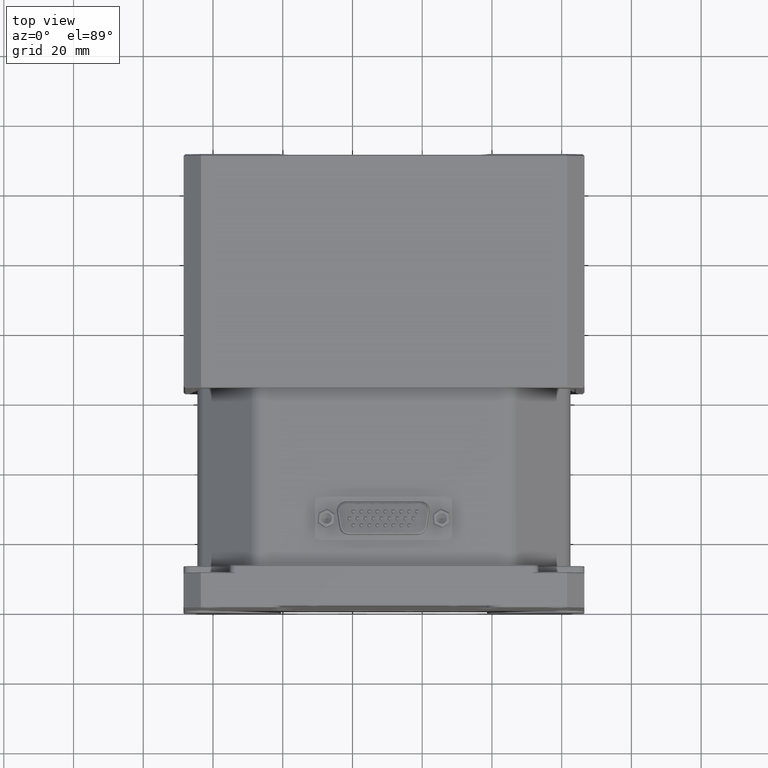
[diagram: clean part render]
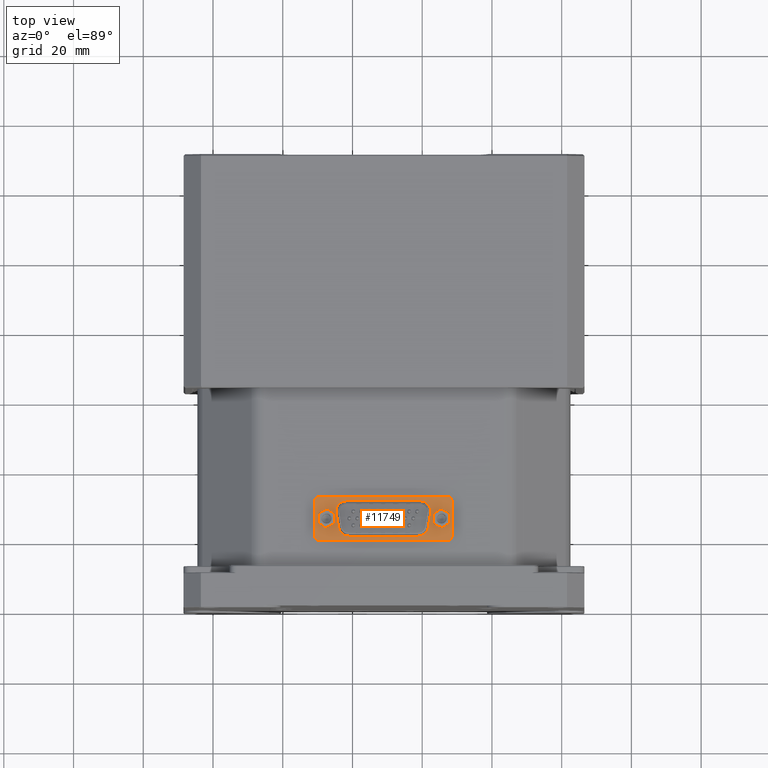
[diagram: same view with one face highlighted and labeled with its STEP entity id]
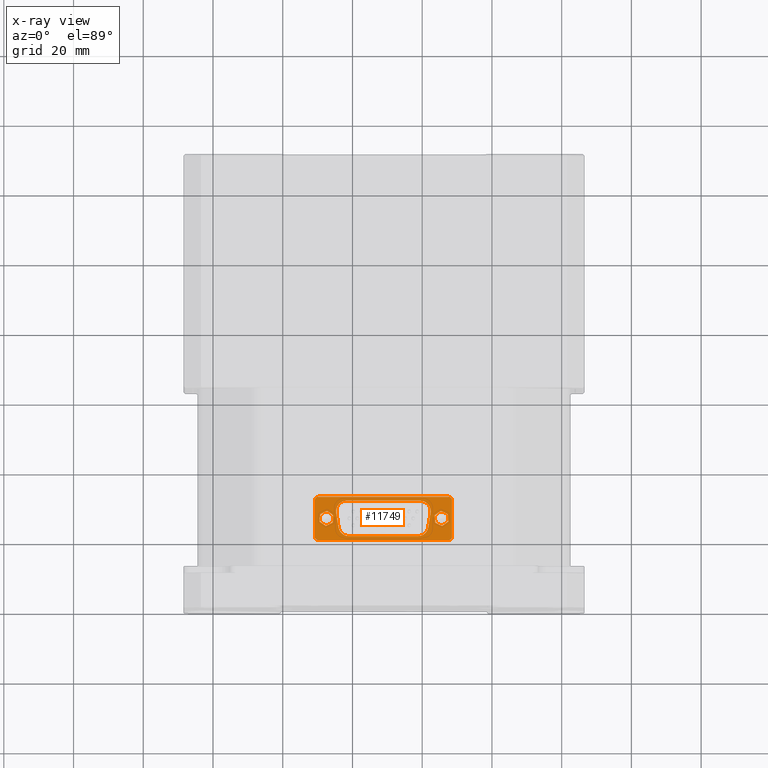
[diagram: x-ray of the same camera — body ghosted, the highlighted face saturated]
A machine part, top view. The second image highlights one B-rep face of the part: STEP entity #11749.
The next image is the same camera in x-ray: the body ghosted, the highlighted face saturated — about 0% of this face is hidden behind the body in this view.
In plain terms, the highlighted planar face has unit normal (0, 0, 1).
Its self-contained STEP definition (entity closure, byte-faithful):
#218 = CARTESIAN_POINT ( 'NONE',  ( -20.90847099414440180, 20.42943677352910115, 0.7999999999998880229 ) ) ;
#226 = FACE_OUTER_BOUND ( 'NONE', #37194, .T. ) ;
#267 = CARTESIAN_POINT ( 'NONE',  ( -47.30183417104730381, 27.62944717363299674, 0.7999999999998219646 ) ) ;
#513 = CARTESIAN_POINT ( 'NONE',  ( -49.79076186493019662, 19.30000000000000071, 0.7999999999999001243 ) ) ;
#781 = VERTEX_POINT ( 'NONE', #41377 ) ;
#1255 = CARTESIAN_POINT ( 'NONE',  ( -44.59532087940349498, 28.28341083439824999, 0.7999999999998129718 ) ) ;
#1508 = VERTEX_POINT ( 'NONE', #38861 ) ;
#1516 = CARTESIAN_POINT ( 'NONE',  ( -44.37853562852409794, 28.88822700559589762, 0.7999999999998070876 ) ) ;
#1871 = CARTESIAN_POINT ( 'NONE',  ( -42.38107698657990596, 20.72748995772925085, 0.7999999999998940181 ) ) ;
#1902 = VERTEX_POINT ( 'NONE', #7633 ) ;
#2014 = CARTESIAN_POINT ( 'NONE',  ( -44.64987169802535050, 27.11131759606919900, 0.7999999999998240741 ) ) ;
#2445 = CARTESIAN_POINT ( 'NONE',  ( -19.72496551446650059, 30.44034793306535036, 0.7999999999997799982 ) ) ;
#2693 = ORIENTED_EDGE ( 'NONE', *, *, #25323, .T. ) ;
#2751 = ORIENTED_EDGE ( 'NONE', *, *, #19799, .F. ) ;
#2917 = VECTOR ( 'NONE', #16849, 1000.000000000000000 ) ;
#3198 = CARTESIAN_POINT ( 'NONE',  ( -19.82776828177830097, 30.46935277396904951, 0.7999999999997799982 ) ) ;
#3297 = VECTOR ( 'NONE', #27282, 1000.000000000000000 ) ;
#3368 = VERTEX_POINT ( 'NONE', #32082 ) ;
#3448 = VERTEX_POINT ( 'NONE', #12922 ) ;
#3682 = ORIENTED_EDGE ( 'NONE', *, *, #25475, .F. ) ;
#3816 = FACE_BOUND ( 'NONE', #29680, .T. ) ;
#3963 = CARTESIAN_POINT ( 'NONE',  ( -11.47224741510111912, 30.70000000000000284, 0.7999999999997640110 ) ) ;
#4598 = DIRECTION ( 'NONE',  ( 0.000000000000000000, 1.000000000000000000, -2.710505431213759606E-16 ) ) ;
#5020 = VERTEX_POINT ( 'NONE', #40219 ) ;
#5095 = LINE ( 'NONE', #25020, #2917 ) ;
#5111 = DIRECTION ( 'NONE',  ( 1.494921845079933851E-16, -2.710505431213760099E-16, -1.000000000000000000 ) ) ;
#5165 = CARTESIAN_POINT ( 'NONE',  ( -49.79076186493019662, 20.29999999999999716, 0.7999999999999120037 ) ) ;
#5353 = CARTESIAN_POINT ( 'NONE',  ( -44.61976331597589507, 28.17656523206914798, 0.7999999999998150813 ) ) ;
#5449 = VERTEX_POINT ( 'NONE', #10239 ) ;
#5702 = LINE ( 'NONE', #33040, #9674 ) ;
#5761 = CARTESIAN_POINT ( 'NONE',  ( -14.30139915133099926, 23.37058753266245148, 0.7999999999998540501 ) ) ;
#5818 = EDGE_CURVE ( 'NONE', #38483, #3368, #21449, .T. ) ;
#5860 = LINE ( 'NONE', #16865, #19391 ) ;
#5861 = CARTESIAN_POINT ( 'NONE',  ( -42.74534304585954914, 30.36986479286349905, 0.7999999999997899902 ) ) ;
#5889 = EDGE_LOOP ( 'NONE', ( #41763, #10396, #12475, #17032, #16136, #44535, #43095, #35434 ) ) ;
#6363 = CARTESIAN_POINT ( 'NONE',  ( -12.47224741510111912, 31.69999999999999929, 0.7999999999997770006 ) ) ;
#6443 = VERTEX_POINT ( 'NONE', #14259 ) ;
#6527 = CARTESIAN_POINT ( 'NONE',  ( -18.04444699788314921, 29.17617281974079901, 0.7999999999997930988 ) ) ;
#6683 = CIRCLE ( 'NONE', #17424, 1.000000000000000888 ) ;
#6692 = CARTESIAN_POINT ( 'NONE',  ( -49.79076186493019662, 30.70000000000000284, 0.7999999999997899902 ) ) ;
#6716 = CARTESIAN_POINT ( 'NONE',  ( -43.93464799342750382, 22.57276583472959786, 0.7999999999998750333 ) ) ;
#6782 = CARTESIAN_POINT ( 'NONE',  ( -17.57146260285469808, 27.53552521698440003, 0.7999999999998100852 ) ) ;
#6792 = ORIENTED_EDGE ( 'NONE', *, *, #39655, .F. ) ;
#7155 = EDGE_CURVE ( 'NONE', #44608, #47411, #5702, .T. ) ;
#7204 = CARTESIAN_POINT ( 'NONE',  ( -47.64117510898390151, 23.37055282636704945, 0.7999999999998680389 ) ) ;
#7388 = CARTESIAN_POINT ( 'NONE',  ( -19.87997848261115053, 20.72863169514154791, 0.7999999999998850253 ) ) ;
#7464 = LINE ( 'NONE', #23317, #37205 ) ;
#7601 = ORIENTED_EDGE ( 'NONE', *, *, #49528, .T. ) ;
#7633 = CARTESIAN_POINT ( 'NONE',  ( -49.35459327026559606, 25.15830725207669971, 0.7999999999998530509 ) ) ;
#7701 = B_SPLINE_CURVE_WITH_KNOTS ( 'NONE', 3,
 ( #21626, #21880, #26203, #25957, #37461, #48978, #3198, #2445, #42051, #41804, #18047, #14967, #13964, #33628, #37204, #49233, #18296, #29796, #44885, #30284, #6527, #22132, #9868, #33873, #49474, #14459, #30040, #45639, #10624, #6782, #22377, #37961 ),
 .UNSPECIFIED., .F., .F.,
 ( 4, 1, 2, 2, 2, 2, 2, 2, 2, 2, 1, 2, 2, 2, 2, 2, 4 ),
 ( 0.000000000000000000, 0.06250000000000000000, 0.09375000000000000000, 0.1250000000000000000, 0.1875000000000000000, 0.2500000000000000000, 0.3125000000000000000, 0.3750000000000000000, 0.4375000000000000000, 0.5000000000000000000, 0.5625000000000000000, 0.5937500000000000000, 0.6250000000000000000, 0.7500000000000000000, 0.8125000000000000000, 0.8750000000000000000, 1.000000000000000000 ),
 .UNSPECIFIED. ) ;
#7789 = VECTOR ( 'NONE', #47006, 1000.000000000000000 ) ;
#7950 = LINE ( 'NONE', #35297, #31862 ) ;
#8394 = CARTESIAN_POINT ( 'NONE',  ( -18.46372050346549898, 22.24794865033419811, 0.7999999999998670397 ) ) ;
#8403 = LINE ( 'NONE', #12494, #7789 ) ;
#8767 = VERTEX_POINT ( 'NONE', #50108 ) ;
#8785 = VERTEX_POINT ( 'NONE', #46268 ) ;
#8832 = EDGE_CURVE ( 'NONE', #23248, #5449, #20933, .T. ) ;
#9152 = LINE ( 'NONE', #13241, #17474 ) ;
#9539 = DIRECTION ( 'NONE',  ( 0.9030026207697328111, 0.4296350391704498728, -5.024633286316839950E-15 ) ) ;
#9674 = VECTOR ( 'NONE', #9539, 1000.000000000000000 ) ;
#9725 = VECTOR ( 'NONE', #22360, 1000.000000000000000 ) ;
#9868 = CARTESIAN_POINT ( 'NONE',  ( -17.96099757066975044, 29.03371419791859864, 0.7999999999997939870 ) ) ;
#9949 = CARTESIAN_POINT ( 'NONE',  ( -43.89862483613020316, 29.59873323404039880, 0.7999999999997989830 ) ) ;
#10108 = LINE ( 'NONE', #5761, #9725 ) ;
#10239 = CARTESIAN_POINT ( 'NONE',  ( -47.64117510898390151, 23.37055282636704945, 0.7999999999998550493 ) ) ;
#10396 = ORIENTED_EDGE ( 'NONE', *, *, #38179, .T. ) ;
#10624 = CARTESIAN_POINT ( 'NONE',  ( -17.59409786076025028, 27.86312282943259788, 0.7999999999998070876 ) ) ;
#10828 = ORIENTED_EDGE ( 'NONE', *, *, #36006, .T. ) ;
#10839 = ORIENTED_EDGE ( 'NONE', *, *, #8832, .T. ) ;
#11008 = ORIENTED_EDGE ( 'NONE', *, *, #25053, .F. ) ;
#11058 = ORIENTED_EDGE ( 'NONE', *, *, #38678, .F. ) ;
#11180 = ORIENTED_EDGE ( 'NONE', *, *, #33976, .F. ) ;
#11235 = EDGE_CURVE ( 'NONE', #5449, #45454, #34804, .T. ) ;
#11393 = DIRECTION ( 'NONE',  ( -0.07942645210733381700, -0.9968407288557392665, 2.583586663816415235E-16 ) ) ;
#11746 = CARTESIAN_POINT ( 'NONE',  ( -18.34320700975345275, 22.57819203661225060, 0.7999999999998640421 ) ) ;
#11749 = ADVANCED_FACE ( 'NONE', ( #226, #39315, #30901, #3816 ), #47253, .T. ) ;
#11827 = CARTESIAN_POINT ( 'NONE',  ( -14.64161012870024159, 27.62941246733760181, 0.7999999999998079758 ) ) ;
#12142 = DIRECTION ( 'NONE',  ( -0.07942645210733381700, -0.9968407288557392665, 2.583586663816415235E-16 ) ) ;
#12232 = CARTESIAN_POINT ( 'NONE',  ( -19.57188996351065313, 20.90226359377989951, 0.7999999999998820277 ) ) ;
#12283 = CIRCLE ( 'NONE', #40847, 1.600000000000000755 ) ;
#12475 = ORIENTED_EDGE ( 'NONE', *, *, #37885, .T. ) ;
#12494 = CARTESIAN_POINT ( 'NONE',  ( -50.79076186493020373, 31.89475440776159942, 0.7999999999999060085 ) ) ;
#12922 = CARTESIAN_POINT ( 'NONE',  ( -18.26786506457844794, 22.92106170760460060, 0.7999999999998600453 ) ) ;
#13012 = DIRECTION ( 'NONE',  ( -0.9030026207697320340, -0.4296350391704515381, 5.024633286316831272E-15 ) ) ;
#13031 = DIRECTION ( 'NONE',  ( -0.07963009433733173048, 0.9968244820808864759, -1.065831303158124770E-14 ) ) ;
#13131 = CARTESIAN_POINT ( 'NONE',  ( -41.69900955668990150, 20.50306946978364664, 0.7999999999998960165 ) ) ;
#13241 = CARTESIAN_POINT ( 'NONE',  ( -45.54251405714839507, 26.41778465041795343, 0.7999999999998340661 ) ) ;
#13390 = CARTESIAN_POINT ( 'NONE',  ( -42.68613543159064250, 20.89967055248134642, 0.7999999999998920197 ) ) ;
#13458 = CARTESIAN_POINT ( 'NONE',  ( -41.00242246900545240, 20.43450157523579946, 0.7999999999998960165 ) ) ;
#13537 = CARTESIAN_POINT ( 'NONE',  ( -42.54169111035079709, 30.43917708894460361, 0.7999999999997899902 ) ) ;
#13664 = CIRCLE ( 'NONE', #47921, 1.000000000000000888 ) ;
#13789 = CARTESIAN_POINT ( 'NONE',  ( -41.90604931398424782, 30.56549842367344638, 0.7999999999997881028 ) ) ;
#13964 = CARTESIAN_POINT ( 'NONE',  ( -18.94422123348685005, 30.08178854321664986, 0.7999999999997831068 ) ) ;
#14259 = CARTESIAN_POINT ( 'NONE',  ( -16.40068267620760167, 26.41739055914474932, 0.7999999999998260725 ) ) ;
#14459 = CARTESIAN_POINT ( 'NONE',  ( -17.66809695507174993, 28.28570833184490141, 0.7999999999998020916 ) ) ;
#14744 = CARTESIAN_POINT ( 'NONE',  ( -12.54232660382366049, 24.58260944085529687, 0.7999999999998400613 ) ) ;
#14967 = CARTESIAN_POINT ( 'NONE',  ( -19.12875131629985148, 30.19096811781020051, 0.7999999999997819966 ) ) ;
#15244 = CARTESIAN_POINT ( 'NONE',  ( -45.71218452611670102, 24.28833747678494959, 0.7999999999998500533 ) ) ;
#15323 = CARTESIAN_POINT ( 'NONE',  ( -18.29800744574314919, 22.74752249132270165, 0.7999999999998620437 ) ) ;
#16126 = EDGE_CURVE ( 'NONE', #34641, #23248, #9152, .T. ) ;
#16136 = ORIENTED_EDGE ( 'NONE', *, *, #49999, .T. ) ;
#16164 = DIRECTION ( 'NONE',  ( 0.9030903717649765294, -0.4294505564385688312, 4.212571341053528759E-15 ) ) ;
#16575 = CARTESIAN_POINT ( 'NONE',  ( -11.47224741510111912, 31.89475440776159942, 0.7999999999997630118 ) ) ;
#16849 = DIRECTION ( 'NONE',  ( 1.000000000000000000, -4.486911405889655177E-30, -4.170576607243160041E-16 ) ) ;
#16865 = CARTESIAN_POINT ( 'NONE',  ( -16.23057718752295031, 24.28797809180720080, 0.7999999999998449463 ) ) ;
#16866 = CARTESIAN_POINT ( 'NONE',  ( -44.27722605307620540, 29.08116948847899863, 0.7999999999998049782 ) ) ;
#16902 = VECTOR ( 'NONE', #12142, 1000.000000000000000 ) ;
#17032 = ORIENTED_EDGE ( 'NONE', *, *, #18289, .T. ) ;
#17122 = CARTESIAN_POINT ( 'NONE',  ( -44.42286800047745032, 28.79179969915159987, 0.7999999999998079758 ) ) ;
#17261 = AXIS2_PLACEMENT_3D ( 'NONE', #47501, #19408, #34996 ) ;
#17378 = CARTESIAN_POINT ( 'NONE',  ( -44.64987169802535050, 27.11131759606919900, 0.7999999999998240741 ) ) ;
#17424 = AXIS2_PLACEMENT_3D ( 'NONE', #19992, #31737, #46847 ) ;
#17474 = VECTOR ( 'NONE', #37005, 1000.000000000000227 ) ;
#17612 = EDGE_CURVE ( 'NONE', #47411, #34641, #23793, .T. ) ;
#17625 = CARTESIAN_POINT ( 'NONE',  ( -44.22184001600889758, 29.17388692834630248, 0.7999999999998039790 ) ) ;
#17985 = CARTESIAN_POINT ( 'NONE',  ( -43.09085174618465430, 21.23487067851169741, 0.7999999999998890221 ) ) ;
#18047 = CARTESIAN_POINT ( 'NONE',  ( -19.22388563353450053, 30.24074191712104920, 0.7999999999997819966 ) ) ;
#18289 = EDGE_CURVE ( 'NONE', #41155, #3448, #42022, .T. ) ;
#18296 = CARTESIAN_POINT ( 'NONE',  ( -18.44051572286665319, 29.67792395124904914, 0.7999999999997881028 ) ) ;
#18936 = CARTESIAN_POINT ( 'NONE',  ( -49.23082475391460378, 26.71166252321505041, 0.7999999999998390621 ) ) ;
#19097 = CARTESIAN_POINT ( 'NONE',  ( -17.61313758200589774, 27.11131759606919900, 0.7999999999998139710 ) ) ;
#19391 = VECTOR ( 'NONE', #13031, 1000.000000000000114 ) ;
#19408 = DIRECTION ( 'NONE',  ( 4.170576607243160041E-16, 1.075849175890236147E-14, 1.000000000000000000 ) ) ;
#19697 = DIRECTION ( 'NONE',  ( 0.8235761686623986888, -0.5672056896852888386, 5.785941360001238564E-15 ) ) ;
#19799 = EDGE_CURVE ( 'NONE', #8785, #45197, #30360, .T. ) ;
#19992 = CARTESIAN_POINT ( 'NONE',  ( -12.47224741510111912, 30.70000000000000284, 0.7999999999997640110 ) ) ;
#20705 = CARTESIAN_POINT ( 'NONE',  ( -42.43922750056044890, 30.46824860090740117, 0.7999999999997891020 ) ) ;
#20933 = LINE ( 'NONE', #48031, #50500 ) ;
#21206 = CARTESIAN_POINT ( 'NONE',  ( -43.32611080553650140, 30.08386626116460150, 0.7999999999997939870 ) ) ;
#21449 = B_SPLINE_CURVE_WITH_KNOTS ( 'NONE', 3,
 ( #48149, #29225, #40727, #13131, #24889, #1871, #13390, #17985, #28721, #40471, #28974, #50425, #6716, #30729 ),
 .UNSPECIFIED., .F., .F.,
 ( 4, 2, 2, 2, 2, 2, 4 ),
 ( 0.000000000000000000, 0.1250000000000000000, 0.2500000000000000000, 0.5000000000000000000, 0.6250000000000000000, 0.7500000000000000000, 1.000000000000000000 ),
 .UNSPECIFIED. ) ;
#21462 = CARTESIAN_POINT ( 'NONE',  ( -44.68244262005089240, 27.64335126590750136, 0.7999999999998200773 ) ) ;
#21501 = CARTESIAN_POINT ( 'NONE',  ( -20.56951368650354794, 30.56549842367339664, 0.7999999999997791100 ) ) ;
#21584 = VERTEX_POINT ( 'NONE', #48861 ) ;
#21626 = CARTESIAN_POINT ( 'NONE',  ( -20.56951368650354794, 30.56549842367339664, 0.7999999999997791100 ) ) ;
#21880 = CARTESIAN_POINT ( 'NONE',  ( -20.46413109122650198, 30.56549842367339664, 0.7999999999997791100 ) ) ;
#22048 = DIRECTION ( 'NONE',  ( -0.8235761686623986888, 0.5672056896852888386, -5.785941360001238564E-15 ) ) ;
#22132 = CARTESIAN_POINT ( 'NONE',  ( -17.98869838297770229, 29.08306677325304790, 0.7999999999997939870 ) ) ;
#22360 = DIRECTION ( 'NONE',  ( -0.9030903717649765294, 0.4294505564385688312, -4.212571341053513771E-15 ) ) ;
#22377 = CARTESIAN_POINT ( 'NONE',  ( -17.58032420525940154, 27.32132320724640095, 0.7999999999998129718 ) ) ;
#22551 = EDGE_CURVE ( 'NONE', #34561, #48495, #28677, .T. ) ;
#22851 = VECTOR ( 'NONE', #19697, 1000.000000000000114 ) ;
#23248 = VERTEX_POINT ( 'NONE', #15244 ) ;
#23305 = DIRECTION ( 'NONE',  ( -9.542908625646799028E-17, -3.252606517456509851E-16, -1.000000000000000000 ) ) ;
#23317 = CARTESIAN_POINT ( 'NONE',  ( -12.71243209250830120, 26.71202190819284894, 0.7999999999998170797 ) ) ;
#23497 = CARTESIAN_POINT ( 'NONE',  ( -20.56192620520420178, 20.48724983760674689, 0.7999999999998870237 ) ) ;
#23579 = DIRECTION ( 'NONE',  ( -1.000000000000000000, 4.212125440106174865E-16, 0.000000000000000000 ) ) ;
#23793 = LINE ( 'NONE', #267, #22851 ) ;
#23886 = VECTOR ( 'NONE', #49995, 1000.000000000000000 ) ;
#24136 = CARTESIAN_POINT ( 'NONE',  ( -49.20789631216209870, 26.99942565478709966, 0.7999999999998449463 ) ) ;
#24540 = CARTESIAN_POINT ( 'NONE',  ( -44.66614033250454696, 27.21543685673615087, 0.7999999999998250733 ) ) ;
#24573 = LINE ( 'NONE', #42994, #42943 ) ;
#24748 = DIRECTION ( 'NONE',  ( -4.212125440106209871E-16, -1.000000000000000000, 0.000000000000000000 ) ) ;
#24795 = CARTESIAN_POINT ( 'NONE',  ( -43.13972723651684760, 30.19407410103849898, 0.7999999999997920996 ) ) ;
#24889 = CARTESIAN_POINT ( 'NONE',  ( -41.87343176889059748, 20.54847878879174772, 0.7999999999998960165 ) ) ;
#24955 = CARTESIAN_POINT ( 'NONE',  ( -41.69349559352769319, 30.56549842367344638, 0.7999999999997881028 ) ) ;
#25020 = CARTESIAN_POINT ( 'NONE',  ( -49.79076186493019662, 30.56549842367344638, 0.7999999999997909894 ) ) ;
#25040 = CARTESIAN_POINT ( 'NONE',  ( -44.53674213107584734, 28.49094917950574768, 0.7999999999998110845 ) ) ;
#25053 = EDGE_CURVE ( 'NONE', #45418, #28309, #8403, .T. ) ;
#25323 = EDGE_CURVE ( 'NONE', #50606, #5020, #7464, .T. ) ;
#25475 = EDGE_CURVE ( 'NONE', #45197, #35624, #24573, .T. ) ;
#25772 = LINE ( 'NONE', #34195, #3297 ) ;
#25957 = CARTESIAN_POINT ( 'NONE',  ( -20.14558363796535190, 30.53371001726034706, 0.7999999999997791100 ) ) ;
#26203 = CARTESIAN_POINT ( 'NONE',  ( -20.30537157904520029, 30.55641602184109828, 0.7999999999997791100 ) ) ;
#26412 = CARTESIAN_POINT ( 'NONE',  ( -57.16179680895969994, 31.69999999999999929, 0.7999999999997909894 ) ) ;
#26520 = ORIENTED_EDGE ( 'NONE', *, *, #50051, .F. ) ;
#26645 = VECTOR ( 'NONE', #16164, 1000.000000000000000 ) ;
#26681 = ORIENTED_EDGE ( 'NONE', *, *, #29056, .F. ) ;
#26736 = VERTEX_POINT ( 'NONE', #6363 ) ;
#27194 = ORIENTED_EDGE ( 'NONE', *, *, #11235, .T. ) ;
#27282 = DIRECTION ( 'NONE',  ( -0.1543768802736019963, 0.9880120337511026918, -1.058357284820831979E-14 ) ) ;
#27322 = CARTESIAN_POINT ( 'NONE',  ( -18.80869792395264994, 21.61943725382945303, 0.7999999999998740341 ) ) ;
#28309 = VERTEX_POINT ( 'NONE', #37492 ) ;
#28364 = CARTESIAN_POINT ( 'NONE',  ( -43.58362960836259958, 29.89004743536190389, 0.7999999999997959854 ) ) ;
#28620 = CARTESIAN_POINT ( 'NONE',  ( -44.68167560233779767, 27.37369526891899696, 0.7999999999998230749 ) ) ;
#28677 = B_SPLINE_CURVE_WITH_KNOTS ( 'NONE', 3,
 ( #17378, #24540, #28620, #48048, #21462, #41130, #48807, #40876, #5353, #1255, #25040, #44220, #17122, #1516, #16866, #17625, #29125, #32179, #9949, #43959, #40617, #28364, #37045, #21206, #24795, #48555, #5861, #13537, #20705, #32696, #13789, #48302 ),
 .UNSPECIFIED., .F., .F.,
 ( 4, 1, 2, 2, 2, 2, 2, 2, 2, 2, 1, 2, 2, 2, 2, 2, 4 ),
 ( 0.000000000000000000, 0.06250000000000340006, 0.09375000000000520417, 0.1250000000000069944, 0.1875000000000099920, 0.2500000000000134892, 0.3125000000000169864, 0.3750000000000199840, 0.4375000000000234812, 0.5000000000000269784, 0.5625000000000299760, 0.5937500000000309752, 0.6250000000000309752, 0.7500000000000239808, 0.8125000000000189848, 0.8750000000000139888, 1.000000000000000000 ),
 .UNSPECIFIED. ) ;
#28721 = CARTESIAN_POINT ( 'NONE',  ( -43.21480236231024463, 21.35804934658250076, 0.7999999999998870237 ) ) ;
#28878 = CARTESIAN_POINT ( 'NONE',  ( -47.79150464001569532, 25.50000000000000000, 0.7999999999998620437 ) ) ;
#28931 = DIRECTION ( 'NONE',  ( 1.494921845079933851E-16, -3.252606517456509851E-16, -1.000000000000000000 ) ) ;
#28974 = CARTESIAN_POINT ( 'NONE',  ( -43.54376146893544330, 21.77496879117920159, 0.7999999999998830269 ) ) ;
#29056 = EDGE_CURVE ( 'NONE', #28309, #21584, #41532, .T. ) ;
#29067 = ORIENTED_EDGE ( 'NONE', *, *, #7155, .T. ) ;
#29125 = CARTESIAN_POINT ( 'NONE',  ( -44.10160544318760145, 29.35181420493244886, 0.7999999999998020916 ) ) ;
#29225 = CARTESIAN_POINT ( 'NONE',  ( -41.17786264622614567, 20.43197805960054936, 0.7999999999998960165 ) ) ;
#29253 = CARTESIAN_POINT ( 'NONE',  ( -12.47224741510111912, 19.30000000000000071, 0.7999999999998850253 ) ) ;
#29680 = EDGE_LOOP ( 'NONE', ( #2693, #10828, #32764, #32660, #7601, #50226 ) ) ;
#29734 = EDGE_CURVE ( 'NONE', #43588, #1508, #10108, .T. ) ;
#29796 = CARTESIAN_POINT ( 'NONE',  ( -18.36530865381704913, 29.59949748460444852, 0.7999999999997881028 ) ) ;
#29992 = LINE ( 'NONE', #26412, #34895 ) ;
#30040 = CARTESIAN_POINT ( 'NONE',  ( -17.64404510875204934, 28.18075682677930160, 0.7999999999998030908 ) ) ;
#30124 = CARTESIAN_POINT ( 'NONE',  ( -45.54251405714839507, 26.41778465041795343, 0.7999999999998400613 ) ) ;
#30284 = CARTESIAN_POINT ( 'NONE',  ( -18.13130981111869744, 29.31258530735129852, 0.7999999999997909894 ) ) ;
#30319 = DIRECTION ( 'NONE',  ( -0.8234602774276479353, -0.5673739256423239175, 6.394987818948729845E-15 ) ) ;
#30360 = CIRCLE ( 'NONE', #38539, 1.000000000000000888 ) ;
#30729 = CARTESIAN_POINT ( 'NONE',  ( -43.99514421545280385, 22.92106170760460060, 0.7999999999998700373 ) ) ;
#30901 = FACE_BOUND ( 'NONE', #32327, .T. ) ;
#31177 = EDGE_CURVE ( 'NONE', #1902, #40025, #12283, .T. ) ;
#31265 = DIRECTION ( 'NONE',  ( -0.1543768802736045498, -0.9880120337511022477, 1.071139377632696345E-14 ) ) ;
#31347 = CARTESIAN_POINT ( 'NONE',  ( -49.28076418576029738, 26.08489828637855013, 0.7999999999998530509 ) ) ;
#31737 = DIRECTION ( 'NONE',  ( -9.542908625646799028E-17, -3.252606517456509851E-16, -1.000000000000000000 ) ) ;
#31745 = CARTESIAN_POINT ( 'NONE',  ( -50.79076186493020373, 20.29999999999999716, 0.7999999999999120037 ) ) ;
#31862 = VECTOR ( 'NONE', #38632, 1000.000000000000114 ) ;
#32082 = CARTESIAN_POINT ( 'NONE',  ( -43.99514421545280385, 22.92106170760460060, 0.7999999999998700373 ) ) ;
#32179 = CARTESIAN_POINT ( 'NONE',  ( -44.03572940854235185, 29.43822691955154980, 0.7999999999998010924 ) ) ;
#32313 = VECTOR ( 'NONE', #11393, 1000.000000000000000 ) ;
#32327 = EDGE_LOOP ( 'NONE', ( #10839, #27194, #6792, #42813, #11058, #29067, #36808, #33682 ) ) ;
#32660 = ORIENTED_EDGE ( 'NONE', *, *, #44786, .T. ) ;
#32696 = CARTESIAN_POINT ( 'NONE',  ( -42.11905150579949719, 30.54118596798194929, 0.7999999999997881028 ) ) ;
#32764 = ORIENTED_EDGE ( 'NONE', *, *, #29734, .T. ) ;
#33040 = CARTESIAN_POINT ( 'NONE',  ( -49.23082475391460378, 26.71166252321505041, 0.7999999999998320677 ) ) ;
#33611 = CARTESIAN_POINT ( 'NONE',  ( -12.71243209250830120, 26.71202190819284894, 0.7999999999998230749 ) ) ;
#33628 = CARTESIAN_POINT ( 'NONE',  ( -18.85579378647575055, 30.02310147414724995, 0.7999999999997841060 ) ) ;
#33682 = ORIENTED_EDGE ( 'NONE', *, *, #16126, .T. ) ;
#33873 = CARTESIAN_POINT ( 'NONE',  ( -17.83695801206965115, 28.79871393154645176, 0.7999999999997970956 ) ) ;
#33976 = EDGE_CURVE ( 'NONE', #26736, #38762, #6683, .T. ) ;
#34195 = CARTESIAN_POINT ( 'NONE',  ( -43.99514421545275411, 22.92106170760460060, 0.7999999999998710365 ) ) ;
#34367 = VECTOR ( 'NONE', #24748, 1000.000000000000000 ) ;
#34507 = B_SPLINE_CURVE_WITH_KNOTS ( 'NONE', 3,
 ( #43411, #15323, #11746, #8394, #46505, #27322, #38575, #12232, #7388, #23497, #218, #50337 ),
 .UNSPECIFIED., .F., .F.,
 ( 4, 2, 2, 2, 2, 4 ),
 ( 0.000000000000000000, 0.1250000000000000000, 0.2500000000000000000, 0.5000000000000000000, 0.7500000000000000000, 1.000000000000000000 ),
 .UNSPECIFIED. ) ;
#34561 = VERTEX_POINT ( 'NONE', #2014 ) ;
#34641 = VERTEX_POINT ( 'NONE', #30124 ) ;
#34804 = LINE ( 'NONE', #7204, #36779 ) ;
#34895 = VECTOR ( 'NONE', #37918, 1000.000000000000000 ) ;
#34996 = DIRECTION ( 'NONE',  ( 0.000000000000000000, -1.000000000000000000, 1.075849175890236147E-14 ) ) ;
#35074 = EDGE_CURVE ( 'NONE', #8767, #38483, #42830, .T. ) ;
#35156 = CARTESIAN_POINT ( 'NONE',  ( -49.79076186493019662, 20.43450157414114798, 0.7999999999999001243 ) ) ;
#35297 = CARTESIAN_POINT ( 'NONE',  ( -16.40068267620760167, 26.41739055914474932, 0.7999999999998219646 ) ) ;
#35434 = ORIENTED_EDGE ( 'NONE', *, *, #47552, .T. ) ;
#35624 = VERTEX_POINT ( 'NONE', #513 ) ;
#36006 = EDGE_CURVE ( 'NONE', #5020, #43588, #41580, .T. ) ;
#36779 = VECTOR ( 'NONE', #22048, 1000.000000000000114 ) ;
#36808 = ORIENTED_EDGE ( 'NONE', *, *, #17612, .T. ) ;
#37005 = DIRECTION ( 'NONE',  ( -0.07942645210733292882, -0.9968407288557392665, 1.070906690316016422E-14 ) ) ;
#37045 = CARTESIAN_POINT ( 'NONE',  ( -43.53914504054825585, 29.92503506884395037, 0.7999999999997949862 ) ) ;
#37194 = EDGE_LOOP ( 'NONE', ( #43895, #3682, #2751, #26520, #11180, #50102, #26681, #11008 ) ) ;
#37204 = CARTESIAN_POINT ( 'NONE',  ( -18.68080416984054892, 29.89322053518330335, 0.7999999999997849942 ) ) ;
#37205 = VECTOR ( 'NONE', #45568, 1000.000000000000114 ) ;
#37461 = CARTESIAN_POINT ( 'NONE',  ( -20.03882980415690085, 30.51554521359575034, 0.7999999999997791100 ) ) ;
#37492 = CARTESIAN_POINT ( 'NONE',  ( -50.79076186493020373, 30.70000000000000284, 0.7999999999998480549 ) ) ;
#37885 = EDGE_CURVE ( 'NONE', #47171, #41155, #7701, .T. ) ;
#37918 = DIRECTION ( 'NONE',  ( 1.000000000000000000, 7.118871464539760977E-16, 0.000000000000000000 ) ) ;
#37961 = CARTESIAN_POINT ( 'NONE',  ( -17.61313758200589774, 27.11131759606919900, 0.7999999999998139710 ) ) ;
#38128 = DIRECTION ( 'NONE',  ( 1.494921845079933851E-16, -3.252606517456499990E-16, -1.000000000000000000 ) ) ;
#38179 = EDGE_CURVE ( 'NONE', #48495, #47171, #5095, .T. ) ;
#38483 = VERTEX_POINT ( 'NONE', #13458 ) ;
#38539 = AXIS2_PLACEMENT_3D ( 'NONE', #38641, #23305, #50411 ) ;
#38575 = CARTESIAN_POINT ( 'NONE',  ( -19.03374214073505044, 21.35107030759569824, 0.7999999999998771427 ) ) ;
#38632 = DIRECTION ( 'NONE',  ( 0.8234602774276492676, 0.5673739256423219190, -6.445741690527651099E-15 ) ) ;
#38641 = CARTESIAN_POINT ( 'NONE',  ( -12.47224741510111912, 20.29999999999999716, 0.7999999999998850253 ) ) ;
#38678 = EDGE_CURVE ( 'NONE', #44608, #40025, #47402, .T. ) ;
#38762 = VERTEX_POINT ( 'NONE', #3963 ) ;
#38861 = CARTESIAN_POINT ( 'NONE',  ( -16.23057718752295031, 24.28797809180720080, 0.7999999999998380629 ) ) ;
#39315 = FACE_BOUND ( 'NONE', #5889, .T. ) ;
#39655 = EDGE_CURVE ( 'NONE', #1902, #45454, #42577, .T. ) ;
#40025 = VERTEX_POINT ( 'NONE', #31347 ) ;
#40219 = CARTESIAN_POINT ( 'NONE',  ( -12.54232660382366049, 24.58260944085529687, 0.7999999999998350653 ) ) ;
#40328 = LINE ( 'NONE', #16575, #34367 ) ;
#40471 = CARTESIAN_POINT ( 'NONE',  ( -43.44079395041644887, 21.62729726817889997, 0.7999999999998850253 ) ) ;
#40617 = CARTESIAN_POINT ( 'NONE',  ( -43.66701319745715182, 29.82059370635609952, 0.7999999999997970956 ) ) ;
#40694 = CARTESIAN_POINT ( 'NONE',  ( -49.40049522288289552, 24.58221534958209986, 0.7999999999998460565 ) ) ;
#40727 = CARTESIAN_POINT ( 'NONE',  ( -41.35226809920719404, 20.44518693538305243, 0.7999999999998960165 ) ) ;
#40847 = AXIS2_PLACEMENT_3D ( 'NONE', #28878, #5111, #4598 ) ;
#40876 = CARTESIAN_POINT ( 'NONE',  ( -44.65660016416809697, 27.96506167292864831, 0.7999999999998170797 ) ) ;
#40934 = DIRECTION ( 'NONE',  ( 0.000000000000000000, 1.000000000000000000, -3.252606517456510344E-16 ) ) ;
#41130 = CARTESIAN_POINT ( 'NONE',  ( -44.68011960768294699, 27.69949717832630043, 0.7999999999998200773 ) ) ;
#41155 = VERTEX_POINT ( 'NONE', #19097 ) ;
#41377 = CARTESIAN_POINT ( 'NONE',  ( -14.64161012870025935, 27.62941246733760181, 0.7999999999998190781 ) ) ;
#41532 = CIRCLE ( 'NONE', #43184, 0.9999999999999974465 ) ;
#41580 = LINE ( 'NONE', #14744, #48473 ) ;
#41719 = DIRECTION ( 'NONE',  ( 0.000000000000000000, 1.000000000000000000, -3.252606517456521684E-16 ) ) ;
#41763 = ORIENTED_EDGE ( 'NONE', *, *, #22551, .T. ) ;
#41804 = CARTESIAN_POINT ( 'NONE',  ( -19.41989281965999581, 30.33065753977095014, 0.7999999999997809974 ) ) ;
#42022 = LINE ( 'NONE', #42781, #49048 ) ;
#42051 = CARTESIAN_POINT ( 'NONE',  ( -19.52168420309375207, 30.37130143954234995, 0.7999999999997809974 ) ) ;
#42577 = LINE ( 'NONE', #50497, #16902 ) ;
#42781 = CARTESIAN_POINT ( 'NONE',  ( -17.61313758200589774, 27.11131759606919900, 0.7999999999998150813 ) ) ;
#42813 = ORIENTED_EDGE ( 'NONE', *, *, #31177, .T. ) ;
#42830 = LINE ( 'NONE', #35156, #23886 ) ;
#42943 = VECTOR ( 'NONE', #23579, 1000.000000000000000 ) ;
#42994 = CARTESIAN_POINT ( 'NONE',  ( -20.98328235913065143, 19.30000000000000071, 0.7999999999998870237 ) ) ;
#43095 = ORIENTED_EDGE ( 'NONE', *, *, #5818, .T. ) ;
#43184 = AXIS2_PLACEMENT_3D ( 'NONE', #6692, #38128, #41719 ) ;
#43267 = EDGE_CURVE ( 'NONE', #781, #50606, #46842, .T. ) ;
#43411 = CARTESIAN_POINT ( 'NONE',  ( -18.26786506457844794, 22.92106170760460060, 0.7999999999998600453 ) ) ;
#43588 = VERTEX_POINT ( 'NONE', #47976 ) ;
#43895 = ORIENTED_EDGE ( 'NONE', *, *, #44480, .F. ) ;
#43941 = CARTESIAN_POINT ( 'NONE',  ( -47.30183417104730381, 27.62944717363299674, 0.7999999999998330669 ) ) ;
#43959 = CARTESIAN_POINT ( 'NONE',  ( -43.78838075537684915, 29.71371325578769884, 0.7999999999997970956 ) ) ;
#44220 = CARTESIAN_POINT ( 'NONE',  ( -44.50225155529064835, 28.59262695245644892, 0.7999999999998100852 ) ) ;
#44264 = EDGE_CURVE ( 'NONE', #21584, #26736, #29992, .T. ) ;
#44480 = EDGE_CURVE ( 'NONE', #35624, #45418, #13664, .T. ) ;
#44535 = ORIENTED_EDGE ( 'NONE', *, *, #35074, .T. ) ;
#44608 = VERTEX_POINT ( 'NONE', #18936 ) ;
#44786 = EDGE_CURVE ( 'NONE', #1508, #6443, #5860, .T. ) ;
#44885 = CARTESIAN_POINT ( 'NONE',  ( -18.22789229698664926, 29.43925804859825135, 0.7999999999997899902 ) ) ;
#45197 = VERTEX_POINT ( 'NONE', #29253 ) ;
#45418 = VERTEX_POINT ( 'NONE', #31745 ) ;
#45454 = VERTEX_POINT ( 'NONE', #40694 ) ;
#45568 = DIRECTION ( 'NONE',  ( 0.07963009433732817777, -0.9968244820808868090, 1.070906690316016106E-14 ) ) ;
#45639 = CARTESIAN_POINT ( 'NONE',  ( -17.60700285934650111, 27.96884605058135165, 0.7999999999998060884 ) ) ;
#46268 = CARTESIAN_POINT ( 'NONE',  ( -11.47224741510111912, 20.29999999999999716, 0.7999999999998240741 ) ) ;
#46505 = CARTESIAN_POINT ( 'NONE',  ( -18.53975935659540042, 22.08577869624105006, 0.7999999999998690381 ) ) ;
#46842 = LINE ( 'NONE', #11827, #26645 ) ;
#46847 = DIRECTION ( 'NONE',  ( 0.000000000000000000, -1.000000000000000000, 3.252606517456510344E-16 ) ) ;
#47006 = DIRECTION ( 'NONE',  ( -1.844986836918585262E-15, 1.000000000000000000, 0.000000000000000000 ) ) ;
#47171 = VERTEX_POINT ( 'NONE', #21501 ) ;
#47253 = PLANE ( 'NONE',  #17261 ) ;
#47402 = LINE ( 'NONE', #24136, #32313 ) ;
#47411 = VERTEX_POINT ( 'NONE', #43941 ) ;
#47501 = CARTESIAN_POINT ( 'NONE',  ( -49.79076186493019662, 20.29999999999999716, 0.7999999999999020117 ) ) ;
#47552 = EDGE_CURVE ( 'NONE', #3368, #34561, #25772, .T. ) ;
#47921 = AXIS2_PLACEMENT_3D ( 'NONE', #5165, #28931, #40934 ) ;
#47976 = CARTESIAN_POINT ( 'NONE',  ( -14.30139915133099926, 23.37058753266245148, 0.7999999999998420597 ) ) ;
#48031 = CARTESIAN_POINT ( 'NONE',  ( -45.71218452611670102, 24.28833747678494959, 0.7999999999998570477 ) ) ;
#48048 = CARTESIAN_POINT ( 'NONE',  ( -44.68390934934274838, 27.53507296287559925, 0.7999999999998219646 ) ) ;
#48149 = CARTESIAN_POINT ( 'NONE',  ( -41.00242246900545240, 20.43450157523579946, 0.7999999999998960165 ) ) ;
#48302 = CARTESIAN_POINT ( 'NONE',  ( -41.69349559352769319, 30.56549842367344638, 0.7999999999997881028 ) ) ;
#48473 = VECTOR ( 'NONE', #30319, 999.9999999999998863 ) ;
#48495 = VERTEX_POINT ( 'NONE', #24955 ) ;
#48555 = CARTESIAN_POINT ( 'NONE',  ( -42.84532334499100159, 30.32989920201395151, 0.7999999999997909894 ) ) ;
#48807 = CARTESIAN_POINT ( 'NONE',  ( -44.66938693408284422, 27.85901363193924851, 0.7999999999998179678 ) ) ;
#48861 = CARTESIAN_POINT ( 'NONE',  ( -49.79076186493019662, 31.69999999999999929, 0.7999999999997899902 ) ) ;
#48978 = CARTESIAN_POINT ( 'NONE',  ( -19.98371560018415138, 30.50458242653795082, 0.7999999999997791100 ) ) ;
#49048 = VECTOR ( 'NONE', #31265, 1000.000000000000114 ) ;
#49233 = CARTESIAN_POINT ( 'NONE',  ( -18.59774855711875219, 29.82418503060370085, 0.7999999999997859934 ) ) ;
#49474 = CARTESIAN_POINT ( 'NONE',  ( -17.75684465888170038, 28.59755119794159839, 0.7999999999997989830 ) ) ;
#49528 = EDGE_CURVE ( 'NONE', #6443, #781, #7950, .T. ) ;
#49995 = DIRECTION ( 'NONE',  ( -1.000000000000000000, 4.486911405889655177E-30, 4.170576607243160041E-16 ) ) ;
#49999 = EDGE_CURVE ( 'NONE', #3448, #8767, #34507, .T. ) ;
#50051 = EDGE_CURVE ( 'NONE', #38762, #8785, #40328, .T. ) ;
#50102 = ORIENTED_EDGE ( 'NONE', *, *, #44264, .F. ) ;
#50108 = CARTESIAN_POINT ( 'NONE',  ( -21.26058661073254896, 20.43450157304839720, 0.7999999999998880229 ) ) ;
#50226 = ORIENTED_EDGE ( 'NONE', *, *, #43267, .T. ) ;
#50337 = CARTESIAN_POINT ( 'NONE',  ( -21.26058661073254896, 20.43450157304839720, 0.7999999999998880229 ) ) ;
#50411 = DIRECTION ( 'NONE',  ( 0.000000000000000000, -1.000000000000000000, 3.252606517456510344E-16 ) ) ;
#50425 = CARTESIAN_POINT ( 'NONE',  ( -43.81424027904505181, 22.24270562151384922, 0.7999999999998780309 ) ) ;
#50497 = CARTESIAN_POINT ( 'NONE',  ( -49.20789631216209870, 26.99942565478709966, 0.7999999999998449463 ) ) ;
#50500 = VECTOR ( 'NONE', #13012, 1000.000000000000114 ) ;
#50606 = VERTEX_POINT ( 'NONE', #33611 ) ;